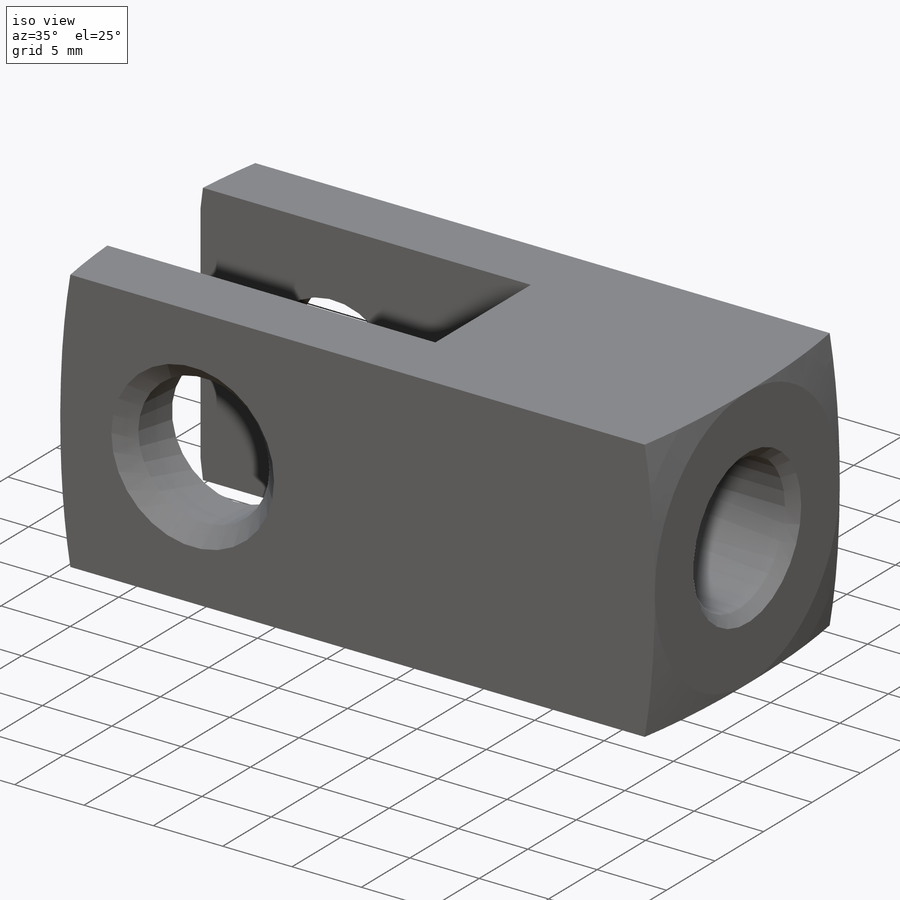
[diagram: iso view]
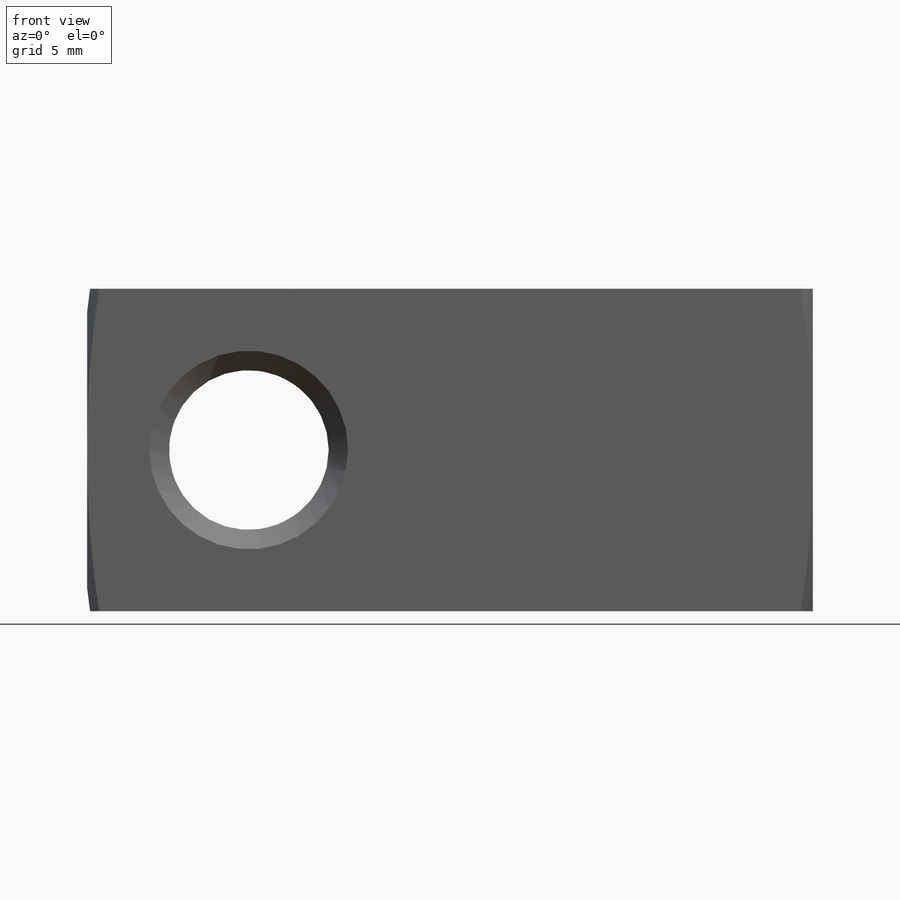
[diagram: front view]
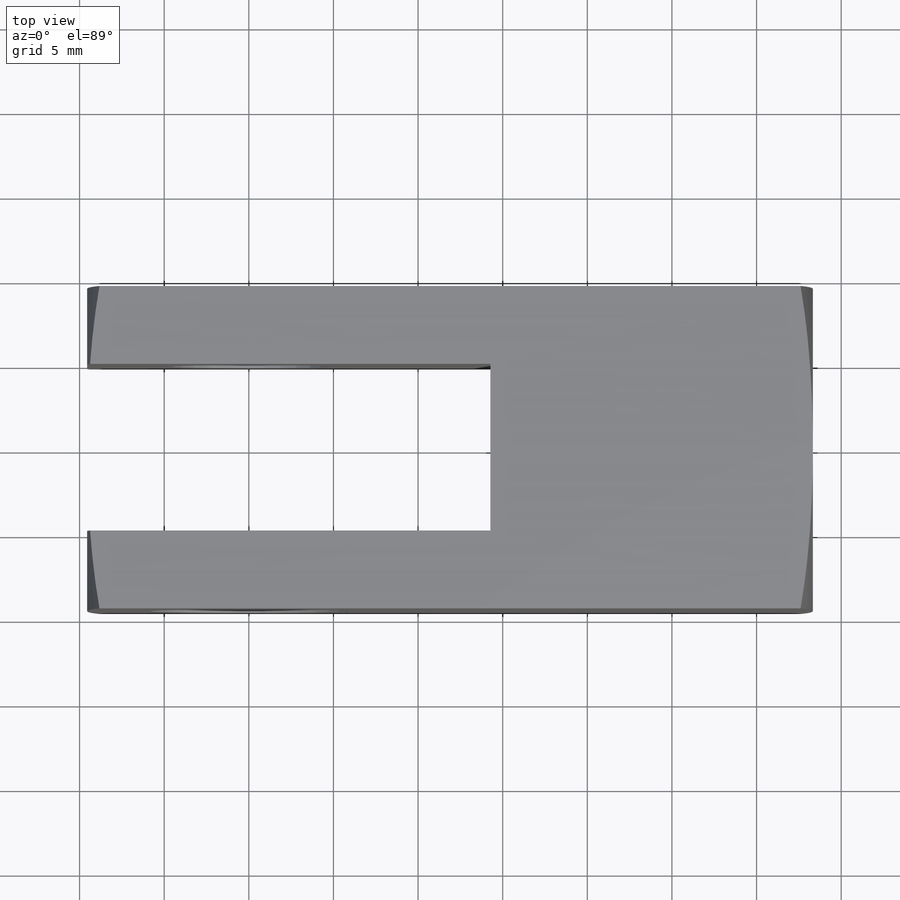
[diagram: top view]
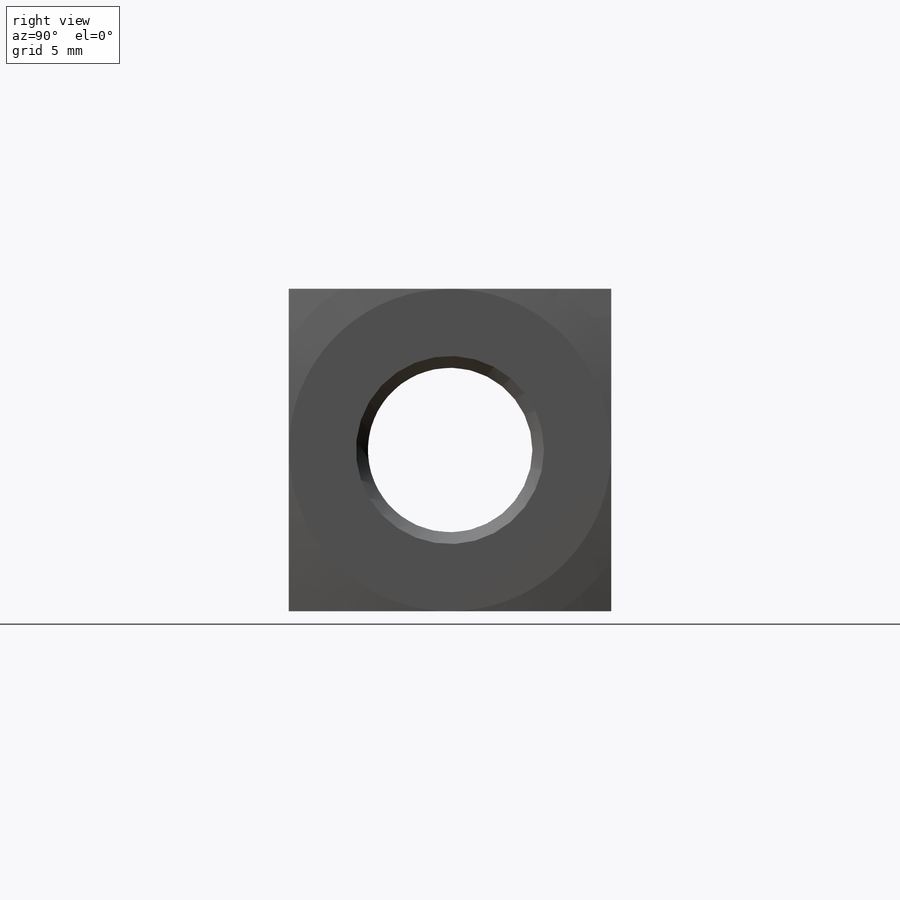
[diagram: right view]
SOLIDWORKS PART (.sldprt)
format: sldprt  version: not decoded by parser v0  size: 423,424 bytes
history: native  units: mm
features: plane x59, sketch x27, cut_revolve x3, hole x2, material x1, extrude x1, cut_extrude x1, thread x1 (+14 scaffold rows collapsed; 1 parser-record rows omitted)
feature tree (110):
  scaffold x14  (default folders/planes/origin — collapsed)
  material  "AISI 1045 Steel, cold drawn"
  sketch  "Sketch1"
  extrude  "Boss-Extrude1"  Depth=9.525mm
  sketch  "Sketch2"
  cut_extrude  "Cut-Extrude1"  Depth=9.525mm
  hole  "Hole1"  Diameter=9.73836mm Depth=15.748mm
  sketch  "Sketch4"
  sketch  "Sketch3"  dims[Diameter=~9.73836mm Depth=15.748mm C-Sink Angle=90.0deg C-Sink Diameter=11.1125mm]
  thread  "Cosmetic Thread1"  Diameter=15.748mm  [1 undecoded]
  plane  "Plane1"  Offset=6.35mm
  plane  "Plane2"  Offset=6.35mm
  plane  "Plane3"  Offset=23.876mm
  hole  "Hole2"  Diameter=9.92124mm Depth=3.302mm
  sketch  "Sketch6"
  sketch  "Sketch5"  dims[Diameter=~9.92124mm Depth=3.302mm]
  sketch  "Sketch7"
  cut_revolve  "Cut-Revolve1"  Angle=360deg
  sketch  "Sketch8"
  cut_revolve  "Cut-Revolve2"  Angle=360deg
  sketch  "Sketch9"
  cut_revolve  "Cut-Revolve3"  Angle=360deg
  plane  "Plane4"  Offset=33.3248mm
  plane  "Plane5"  Offset=14.2748mm
  parser-record x1  (decoder bookkeeping rows leaked as tree rows — omitted from the tree; the rows remain in map.json)
  plane  "dummy XY"
  plane  "dummy XZ"
  plane  "dummy YZ"
  sketch  "dummy"
  plane  "h1 XY"
  plane  "h1 XZ"
  plane  "h1 YZ"
  sketch  "h1"
  plane  "h2 XY"
  plane  "h2 XZ"
  plane  "h2 YZ"
  sketch  "h2"
  plane  "l1 XY"
  plane  "l1 XZ"
  plane  "l1 YZ"
  sketch  "l1"
  plane  "l11 XY"
  plane  "l11 XZ"
  plane  "l11 YZ"
  sketch  "l11"
  plane  "l12 XY"
  plane  "l12 XZ"
  plane  "l12 YZ"
  sketch  "l12"
  plane  "l2 XY"
  plane  "l2 XZ"
  plane  "l2 YZ"
  sketch  "l2"
  plane  "l21 XY"
  plane  "l21 XZ"
  plane  "l21 YZ"
  sketch  "l21"
  plane  "l22 XY"
  plane  "l22 XZ"
  plane  "l22 YZ"
  sketch  "l22"
  plane  "piston_rod_clevis XY"
  plane  "piston_rod_clevis XZ"
  plane  "piston_rod_clevis YZ"
  sketch  "piston_rod_clevis"
  plane  "rod_clevis_body XY"
  plane  "rod_clevis_body XZ"
  plane  "rod_clevis_body YZ"
  sketch  "rod_clevis_body"
  plane  "th1 XY"
  plane  "th1 XZ"
  plane  "th1 YZ"
  sketch  "th1"
  plane  "th2 XY"
  plane  "th2 XZ"
  plane  "th2 YZ"
  sketch  "th2"
  plane  "to_cylinder XY"
  plane  "to_cylinder XZ"
  plane  "to_cylinder YZ"
  sketch  "to_cylinder"
  plane  "w1 XY"
  plane  "w1 XZ"
  plane  "w1 YZ"
  sketch  "w1"
  plane  "w11 XY"
  plane  "w11 XZ"
  plane  "w11 YZ"
  sketch  "w11"
  plane  "w12 XY"
  plane  "w12 XZ"
  plane  "w12 YZ"
  sketch  "w12"
  plane  "w2 XY"
  plane  "w2 XZ"
  plane  "w2 YZ"
  sketch  "w2"
decode coverage: 10 of 35 modeling features carry decoded parameters
note: ~ marks probable driven/reference dimensions
note: 1 parameter value undecoded
note: suppression state not decoded; provenance and decode notes live in map.json
